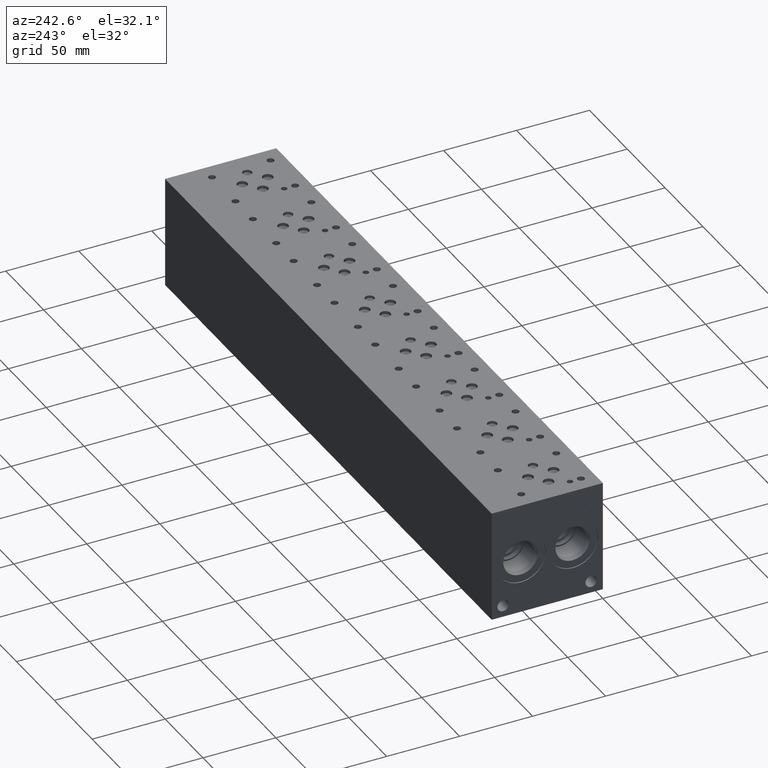
[diagram: clean part render]
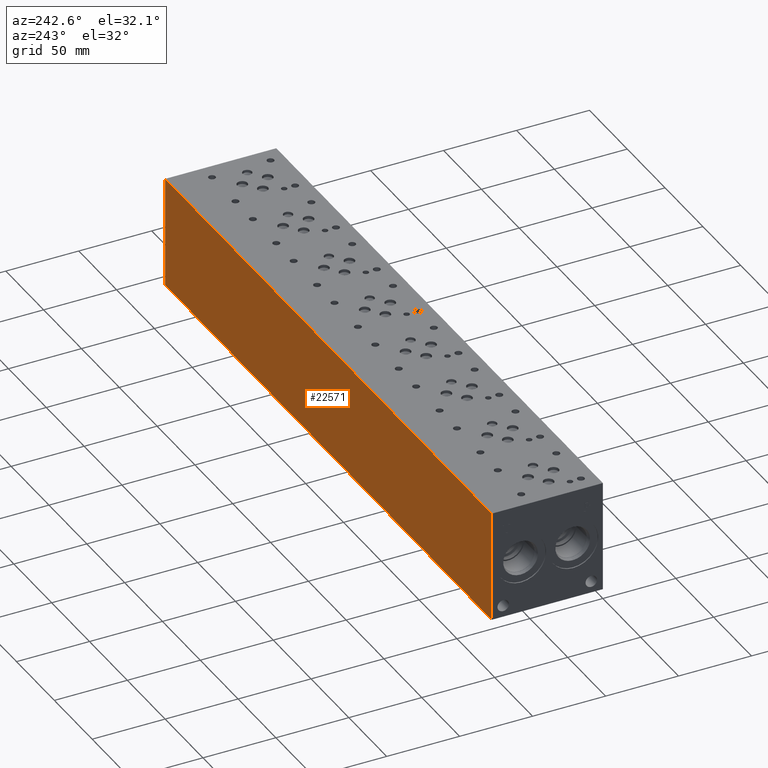
[diagram: same view with one face highlighted and labeled with its STEP entity id]
A machine part, auxiliary view. The second image highlights one B-rep face of the part: STEP entity #22571.
In plain terms, the highlighted planar face has unit normal (0, 1, 0).
Its self-contained STEP definition (entity closure, byte-faithful):
#2005=PLANE('',#24330);
#3190=FACE_OUTER_BOUND('',#4554,.T.);
#4554=EDGE_LOOP('',(#20281,#20282,#20283,#20284));
#5990=LINE('',#36709,#7813);
#6050=LINE('',#36982,#7873);
#6452=LINE('',#39509,#8275);
#6453=LINE('',#39510,#8276);
#7813=VECTOR('',#26646,10.);
#7873=VECTOR('',#26760,10.);
#8275=VECTOR('',#29640,10.);
#8276=VECTOR('',#29641,10.);
#10057=VERTEX_POINT('',#36706);
#10058=VERTEX_POINT('',#36708);
#10115=VERTEX_POINT('',#36978);
#10116=VERTEX_POINT('',#36980);
#12890=EDGE_CURVE('',#10057,#10058,#5990,.T.);
#12974=EDGE_CURVE('',#10115,#10116,#6050,.T.);
#14149=EDGE_CURVE('',#10057,#10115,#6452,.T.);
#14150=EDGE_CURVE('',#10058,#10116,#6453,.T.);
#20281=ORIENTED_EDGE('',*,*,#14149,.T.);
#20282=ORIENTED_EDGE('',*,*,#12974,.T.);
#20283=ORIENTED_EDGE('',*,*,#14150,.F.);
#20284=ORIENTED_EDGE('',*,*,#12890,.F.);
#22571=ADVANCED_FACE('',(#3190),#2005,.T.);
#24330=AXIS2_PLACEMENT_3D('',#39508,#29638,#29639);
#26646=DIRECTION('',(0.,0.,1.));
#26760=DIRECTION('',(0.,0.,1.));
#29638=DIRECTION('center_axis',(0.,1.,0.));
#29639=DIRECTION('ref_axis',(-1.,0.,0.));
#29640=DIRECTION('',(-1.,0.,0.));
#29641=DIRECTION('',(-1.,0.,0.));
#36706=CARTESIAN_POINT('',(431.8,76.2,0.));
#36708=CARTESIAN_POINT('',(431.8,76.2,76.2));
#36709=CARTESIAN_POINT('',(431.8,76.2,0.));
#36978=CARTESIAN_POINT('',(0.,76.2,0.));
#36980=CARTESIAN_POINT('',(0.,76.2,76.2));
#36982=CARTESIAN_POINT('',(0.,76.2,0.));
#39508=CARTESIAN_POINT('Origin',(431.8,76.2,0.));
#39509=CARTESIAN_POINT('',(431.8,76.2,0.));
#39510=CARTESIAN_POINT('',(431.8,76.2,76.2));